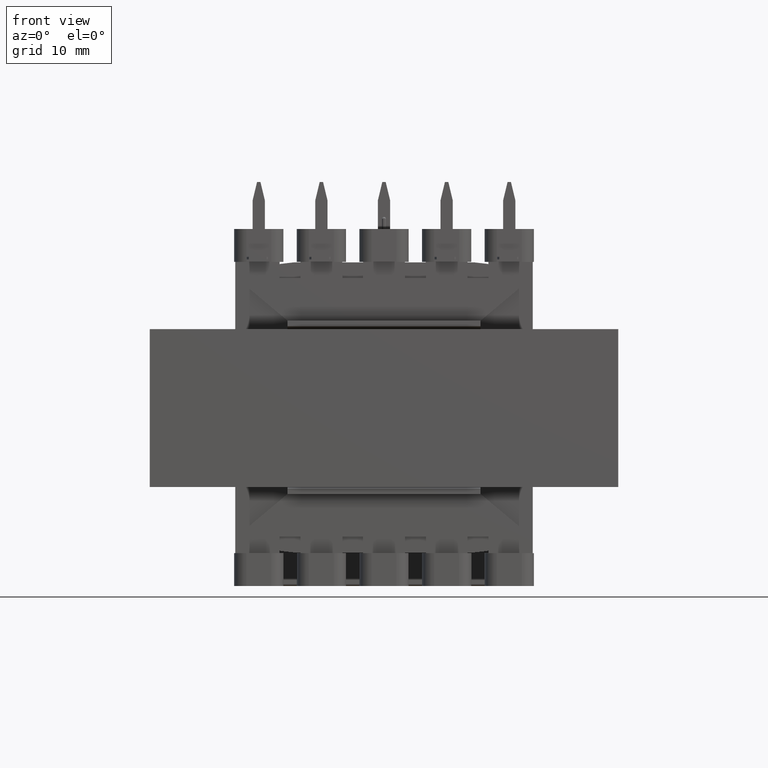
[diagram: clean part render]
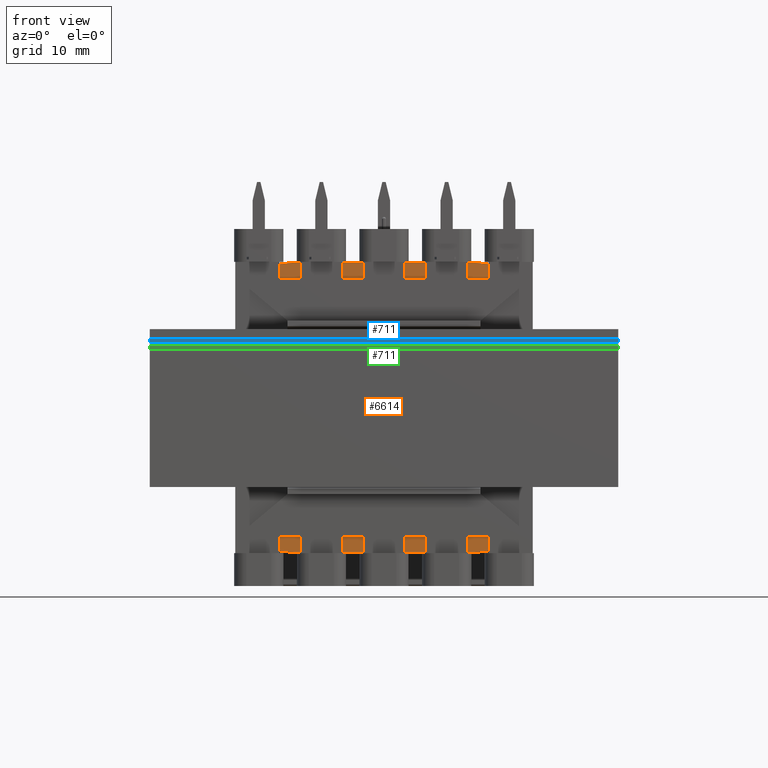
[diagram: same view with three faces highlighted in distinct colors, each labeled with its STEP entity id]
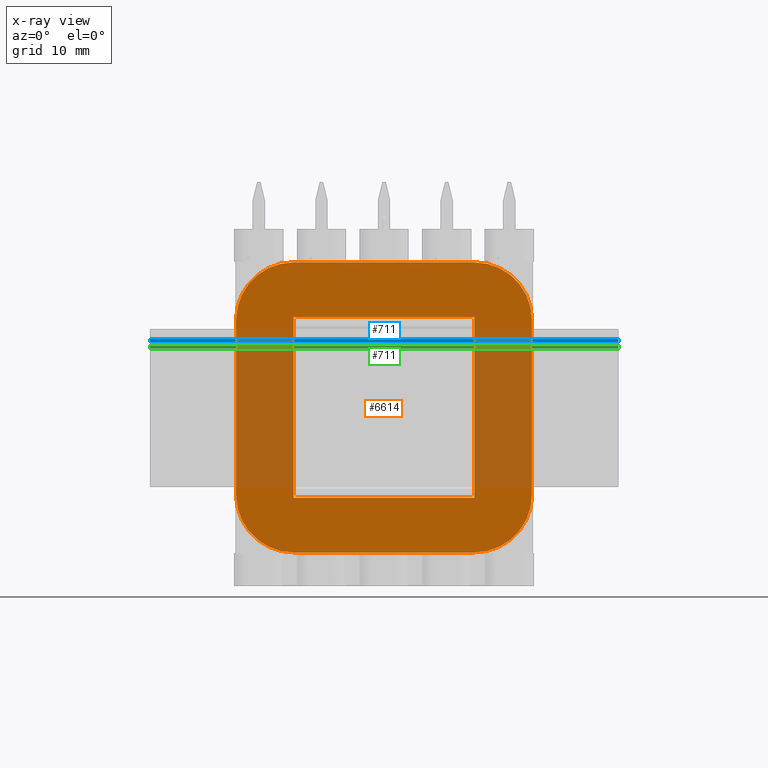
[diagram: x-ray of the same camera — body ghosted, the three highlighted faces saturated]
A machine part, front view with three faces highlighted in distinct colors.
The next image is the same camera in x-ray (body ghosted, the three faces saturated) — at least one of them is partly hidden behind the body in this view.
Their STEP definitions:

[orange] entity #6614 — the highlighted planar face has unit normal (0, -1, 0).
#155 = EDGE_CURVE ( 'NONE', #1482, #7897, #1036, .T. ) ;
#279 = CARTESIAN_POINT ( 'NONE',  ( 11.00000000000000000, 0.000000000000000000, 11.00000000000000178 ) ) ;
#639 = ORIENTED_EDGE ( 'NONE', *, *, #7436, .T. ) ;
#755 = CARTESIAN_POINT ( 'NONE',  ( -11.00000000000000355, 0.000000000000000000, -10.99999999999999289 ) ) ;
#777 = CARTESIAN_POINT ( 'NONE',  ( 11.00000000000001066, 0.000000000000000000, 10.64999999999999680 ) ) ;
#980 = EDGE_LOOP ( 'NONE', ( #6918, #8320, #12465, #13258 ) ) ;
#1036 = LINE ( 'NONE', #6662, #5570 ) ;
#1266 = DIRECTION ( 'NONE',  ( 0.000000000000000000, -0.000000000000000000, -1.000000000000000000 ) ) ;
#1314 = CARTESIAN_POINT ( 'NONE',  ( 18.00000000000001421, 0.000000000000000000, 10.64999999999999680 ) ) ;
#1331 = ORIENTED_EDGE ( 'NONE', *, *, #10420, .T. ) ;
#1482 = VERTEX_POINT ( 'NONE', #7201 ) ;
#1519 = VECTOR ( 'NONE', #3792, 1000.000000000000000 ) ;
#1927 = EDGE_CURVE ( 'NONE', #5792, #10040, #5947, .T. ) ;
#1970 = CARTESIAN_POINT ( 'NONE',  ( 10.99999999999999645, 0.000000000000000000, -10.99999999999999645 ) ) ;
#1995 = FACE_BOUND ( 'NONE', #980, .T. ) ;
#2022 = AXIS2_PLACEMENT_3D ( 'NONE', #3858, #5228, #7339 ) ;
#2140 = FACE_OUTER_BOUND ( 'NONE', #12360, .T. ) ;
#2165 = VERTEX_POINT ( 'NONE', #5315 ) ;
#2211 = AXIS2_PLACEMENT_3D ( 'NONE', #11060, #6460, #1266 ) ;
#2270 = CARTESIAN_POINT ( 'NONE',  ( 18.00000000000000711, 0.000000000000000000, -17.65000000000000213 ) ) ;
#3257 = VECTOR ( 'NONE', #12876, 1000.000000000000000 ) ;
#3654 = CARTESIAN_POINT ( 'NONE',  ( -11.00000000000000355, 0.000000000000000000, -10.99999999999999289 ) ) ;
#3658 = DIRECTION ( 'NONE',  ( -1.000000000000000000, 0.000000000000000000, 1.577021341797097560E-16 ) ) ;
#3726 = ORIENTED_EDGE ( 'NONE', *, *, #155, .F. ) ;
#3792 = DIRECTION ( 'NONE',  ( 0.000000000000000000, 0.000000000000000000, 1.000000000000000000 ) ) ;
#3858 = CARTESIAN_POINT ( 'NONE',  ( -10.99999999999998934, 0.000000000000000000, 10.64999999999999680 ) ) ;
#4144 = CARTESIAN_POINT ( 'NONE',  ( 11.00000000000000888, 0.000000000000000000, -10.65000000000000391 ) ) ;
#4225 = VECTOR ( 'NONE', #6101, 1000.000000000000000 ) ;
#5228 = DIRECTION ( 'NONE',  ( 0.000000000000000000, -1.000000000000000000, 0.000000000000000000 ) ) ;
#5315 = CARTESIAN_POINT ( 'NONE',  ( 11.00000000000001066, 0.000000000000000000, 17.64999999999999503 ) ) ;
#5349 = LINE ( 'NONE', #7377, #3257 ) ;
#5376 = CARTESIAN_POINT ( 'NONE',  ( 18.00000000000000711, 0.000000000000000000, -10.65000000000000568 ) ) ;
#5460 = DIRECTION ( 'NONE',  ( 0.000000000000000000, 0.000000000000000000, -1.000000000000000000 ) ) ;
#5570 = VECTOR ( 'NONE', #8780, 1000.000000000000000 ) ;
#5792 = VERTEX_POINT ( 'NONE', #279 ) ;
#5947 = LINE ( 'NONE', #1970, #4225 ) ;
#6009 = VERTEX_POINT ( 'NONE', #6125 ) ;
#6101 = DIRECTION ( 'NONE',  ( -1.577021341797097560E-16, -0.000000000000000000, -1.000000000000000000 ) ) ;
#6125 = CARTESIAN_POINT ( 'NONE',  ( -11.00000000000000355, 0.000000000000000000, 11.00000000000000711 ) ) ;
#6127 = DIRECTION ( 'NONE',  ( 1.000000000000000000, -0.000000000000000000, -2.365532012695646217E-16 ) ) ;
#6238 = VECTOR ( 'NONE', #7666, 1000.000000000000000 ) ;
#6344 = DIRECTION ( 'NONE',  ( 0.000000000000000000, -1.000000000000000000, 0.000000000000000000 ) ) ;
#6458 = CIRCLE ( 'NONE', #2022, 7.000000000000000000 ) ;
#6460 = DIRECTION ( 'NONE',  ( 0.000000000000000000, -1.000000000000000000, 0.000000000000000000 ) ) ;
#6598 = PLANE ( 'NONE',  #2211 ) ;
#6614 = ADVANCED_FACE ( 'NONE', ( #2140, #1995 ), #6598, .T. ) ;
#6662 = CARTESIAN_POINT ( 'NONE',  ( 18.00000000000000711, 0.000000000000000000, -17.65000000000000213 ) ) ;
#6731 = DIRECTION ( 'NONE',  ( 0.000000000000000000, -1.000000000000000000, 0.000000000000000000 ) ) ;
#6806 = CARTESIAN_POINT ( 'NONE',  ( -17.99999999999999289, 0.000000000000000000, -10.64999999999999858 ) ) ;
#6895 = CIRCLE ( 'NONE', #12279, 6.999999999999999112 ) ;
#6918 = ORIENTED_EDGE ( 'NONE', *, *, #8353, .T. ) ;
#6999 = VECTOR ( 'NONE', #10517, 1000.000000000000000 ) ;
#7176 = EDGE_CURVE ( 'NONE', #8376, #7897, #10164, .T. ) ;
#7201 = CARTESIAN_POINT ( 'NONE',  ( 11.00000000000000888, 0.000000000000000000, -17.65000000000000213 ) ) ;
#7257 = EDGE_CURVE ( 'NONE', #14077, #7910, #10443, .T. ) ;
#7339 = DIRECTION ( 'NONE',  ( 0.000000000000000000, 0.000000000000000000, -1.000000000000000000 ) ) ;
#7377 = CARTESIAN_POINT ( 'NONE',  ( 18.00000000000001421, 0.000000000000000000, 17.64999999999999503 ) ) ;
#7436 = EDGE_CURVE ( 'NONE', #14077, #2165, #8867, .T. ) ;
#7622 = VECTOR ( 'NONE', #6127, 1000.000000000000000 ) ;
#7666 = DIRECTION ( 'NONE',  ( 2.948538486079558773E-16, 0.000000000000000000, 1.000000000000000000 ) ) ;
#7739 = LINE ( 'NONE', #12271, #6238 ) ;
#7897 = VERTEX_POINT ( 'NONE', #12095 ) ;
#7910 = VERTEX_POINT ( 'NONE', #5376 ) ;
#7987 = EDGE_CURVE ( 'NONE', #9219, #2165, #5349, .T. ) ;
#8025 = CARTESIAN_POINT ( 'NONE',  ( 10.99999999999999645, 0.000000000000000000, -10.99999999999999645 ) ) ;
#8144 = CARTESIAN_POINT ( 'NONE',  ( -10.99999999999998934, 0.000000000000000000, 17.64999999999999503 ) ) ;
#8289 = AXIS2_PLACEMENT_3D ( 'NONE', #12700, #6731, #11692 ) ;
#8320 = ORIENTED_EDGE ( 'NONE', *, *, #11430, .T. ) ;
#8323 = CARTESIAN_POINT ( 'NONE',  ( 11.00000000000000000, 0.000000000000000000, 11.00000000000000178 ) ) ;
#8353 = EDGE_CURVE ( 'NONE', #10040, #13440, #10238, .T. ) ;
#8376 = VERTEX_POINT ( 'NONE', #6806 ) ;
#8483 = ORIENTED_EDGE ( 'NONE', *, *, #12659, .F. ) ;
#8501 = ORIENTED_EDGE ( 'NONE', *, *, #7176, .T. ) ;
#8601 = DIRECTION ( 'NONE',  ( 0.000000000000000000, 0.000000000000000000, -1.000000000000000000 ) ) ;
#8780 = DIRECTION ( 'NONE',  ( -1.000000000000000000, 0.000000000000000000, 9.637352644315594010E-17 ) ) ;
#8867 = CIRCLE ( 'NONE', #10743, 7.000000000000000000 ) ;
#9219 = VERTEX_POINT ( 'NONE', #8144 ) ;
#9365 = VERTEX_POINT ( 'NONE', #11725 ) ;
#9482 = ORIENTED_EDGE ( 'NONE', *, *, #7257, .F. ) ;
#9794 = ORIENTED_EDGE ( 'NONE', *, *, #7987, .F. ) ;
#10040 = VERTEX_POINT ( 'NONE', #8025 ) ;
#10164 = CIRCLE ( 'NONE', #8289, 6.999999999999999112 ) ;
#10238 = LINE ( 'NONE', #13599, #13057 ) ;
#10420 = EDGE_CURVE ( 'NONE', #1482, #7910, #6895, .T. ) ;
#10443 = LINE ( 'NONE', #2270, #6999 ) ;
#10517 = DIRECTION ( 'NONE',  ( -1.965692324053039264E-16, -0.000000000000000000, -1.000000000000000000 ) ) ;
#10743 = AXIS2_PLACEMENT_3D ( 'NONE', #777, #12247, #5460 ) ;
#11060 = CARTESIAN_POINT ( 'NONE',  ( 0.000000000000000000, 0.000000000000000000, 0.000000000000000000 ) ) ;
#11430 = EDGE_CURVE ( 'NONE', #13440, #6009, #13817, .T. ) ;
#11692 = DIRECTION ( 'NONE',  ( 0.000000000000000000, 0.000000000000000000, -1.000000000000000000 ) ) ;
#11725 = CARTESIAN_POINT ( 'NONE',  ( -17.99999999999998934, 0.000000000000000000, 10.65000000000000036 ) ) ;
#11753 = ORIENTED_EDGE ( 'NONE', *, *, #12950, .T. ) ;
#11828 = LINE ( 'NONE', #8323, #7622 ) ;
#12095 = CARTESIAN_POINT ( 'NONE',  ( -10.99999999999999289, 0.000000000000000000, -17.64999999999999858 ) ) ;
#12247 = DIRECTION ( 'NONE',  ( 0.000000000000000000, -1.000000000000000000, 0.000000000000000000 ) ) ;
#12271 = CARTESIAN_POINT ( 'NONE',  ( -17.99999999999999645, 0.000000000000000000, -17.64999999999999858 ) ) ;
#12279 = AXIS2_PLACEMENT_3D ( 'NONE', #4144, #6344, #8601 ) ;
#12360 = EDGE_LOOP ( 'NONE', ( #8483, #8501, #3726, #1331, #9482, #639, #9794, #11753 ) ) ;
#12465 = ORIENTED_EDGE ( 'NONE', *, *, #13025, .T. ) ;
#12659 = EDGE_CURVE ( 'NONE', #8376, #9365, #7739, .T. ) ;
#12700 = CARTESIAN_POINT ( 'NONE',  ( -10.99999999999999467, 0.000000000000000000, -10.65000000000000036 ) ) ;
#12876 = DIRECTION ( 'NONE',  ( 1.000000000000000000, -0.000000000000000000, -0.000000000000000000 ) ) ;
#12950 = EDGE_CURVE ( 'NONE', #9219, #9365, #6458, .T. ) ;
#13025 = EDGE_CURVE ( 'NONE', #6009, #5792, #11828, .T. ) ;
#13057 = VECTOR ( 'NONE', #3658, 1000.000000000000000 ) ;
#13258 = ORIENTED_EDGE ( 'NONE', *, *, #1927, .T. ) ;
#13440 = VERTEX_POINT ( 'NONE', #755 ) ;
#13599 = CARTESIAN_POINT ( 'NONE',  ( 10.99999999999999645, 0.000000000000000000, -10.99999999999999645 ) ) ;
#13817 = LINE ( 'NONE', #3654, #1519 ) ;
#14077 = VERTEX_POINT ( 'NONE', #1314 ) ;

[blue] entity #711 — the highlighted planar face has unit normal (-0, 1, 0).
#135 = LINE ( 'NONE', #11310, #10729 ) ;
#333 = DIRECTION ( 'NONE',  ( -1.000000000000000000, -1.065181081740144783E-16, 0.000000000000000000 ) ) ;
#414 = PLANE ( 'NONE',  #3000 ) ;
#711 = ADVANCED_FACE ( 'NONE', ( #12545 ), #414, .F. ) ;
#914 = CARTESIAN_POINT ( 'NONE',  ( -28.49999999999999645, -4.750000000000002665, 0.4000000000000000222 ) ) ;
#1260 = CARTESIAN_POINT ( 'NONE',  ( 28.50000000000000355, -4.749999999999996447, 0.4000000000000000222 ) ) ;
#1316 = EDGE_CURVE ( 'NONE', #6532, #9623, #135, .T. ) ;
#2309 = DIRECTION ( 'NONE',  ( -0.000000000000000000, -0.000000000000000000, -1.000000000000000000 ) ) ;
#3000 = AXIS2_PLACEMENT_3D ( 'NONE', #3925, #12462, #333 ) ;
#3925 = CARTESIAN_POINT ( 'NONE',  ( 28.50000000000000355, -4.749999999999996447, 0.4000000000000000222 ) ) ;
#4190 = VECTOR ( 'NONE', #2309, 1000.000000000000000 ) ;
#4525 = VERTEX_POINT ( 'NONE', #12695 ) ;
#6244 = LINE ( 'NONE', #10763, #8528 ) ;
#6365 = CARTESIAN_POINT ( 'NONE',  ( 28.50000000000000355, -4.749999999999996447, 0.000000000000000000 ) ) ;
#6532 = VERTEX_POINT ( 'NONE', #914 ) ;
#6827 = EDGE_CURVE ( 'NONE', #4525, #7074, #9648, .T. ) ;
#7074 = VERTEX_POINT ( 'NONE', #6365 ) ;
#7537 = EDGE_CURVE ( 'NONE', #9623, #7074, #8886, .T. ) ;
#8528 = VECTOR ( 'NONE', #10628, 1000.000000000000000 ) ;
#8886 = LINE ( 'NONE', #12330, #4190 ) ;
#9375 = EDGE_CURVE ( 'NONE', #6532, #4525, #6244, .T. ) ;
#9623 = VERTEX_POINT ( 'NONE', #1260 ) ;
#9648 = LINE ( 'NONE', #13843, #13661 ) ;
#9763 = ORIENTED_EDGE ( 'NONE', *, *, #6827, .T. ) ;
#10628 = DIRECTION ( 'NONE',  ( -0.000000000000000000, -0.000000000000000000, -1.000000000000000000 ) ) ;
#10729 = VECTOR ( 'NONE', #11392, 1000.000000000000000 ) ;
#10763 = CARTESIAN_POINT ( 'NONE',  ( -28.49999999999999645, -4.750000000000002665, 0.4000000000000000222 ) ) ;
#10803 = ORIENTED_EDGE ( 'NONE', *, *, #1316, .F. ) ;
#10816 = EDGE_LOOP ( 'NONE', ( #9763, #13995, #10803, #12088 ) ) ;
#11310 = CARTESIAN_POINT ( 'NONE',  ( 28.50000000000000355, -4.749999999999996447, 0.4000000000000000222 ) ) ;
#11392 = DIRECTION ( 'NONE',  ( 1.000000000000000000, 1.065181081740144783E-16, -0.000000000000000000 ) ) ;
#12088 = ORIENTED_EDGE ( 'NONE', *, *, #9375, .T. ) ;
#12330 = CARTESIAN_POINT ( 'NONE',  ( 28.50000000000000355, -4.749999999999996447, 0.4000000000000000222 ) ) ;
#12462 = DIRECTION ( 'NONE',  ( -1.065181081740144783E-16, 1.000000000000000000, 0.000000000000000000 ) ) ;
#12545 = FACE_OUTER_BOUND ( 'NONE', #10816, .T. ) ;
#12695 = CARTESIAN_POINT ( 'NONE',  ( -28.49999999999999645, -4.750000000000002665, 0.000000000000000000 ) ) ;
#13661 = VECTOR ( 'NONE', #13983, 1000.000000000000000 ) ;
#13843 = CARTESIAN_POINT ( 'NONE',  ( 28.50000000000000355, -4.749999999999996447, 0.000000000000000000 ) ) ;
#13983 = DIRECTION ( 'NONE',  ( 1.000000000000000000, 1.065181081740144783E-16, -0.000000000000000000 ) ) ;
#13995 = ORIENTED_EDGE ( 'NONE', *, *, #7537, .F. ) ;

[green] entity #711 — the highlighted planar face has unit normal (-0, 1, 0).
#135 = LINE ( 'NONE', #11310, #10729 ) ;
#333 = DIRECTION ( 'NONE',  ( -1.000000000000000000, -1.065181081740144783E-16, 0.000000000000000000 ) ) ;
#414 = PLANE ( 'NONE',  #3000 ) ;
#711 = ADVANCED_FACE ( 'NONE', ( #12545 ), #414, .F. ) ;
#914 = CARTESIAN_POINT ( 'NONE',  ( -28.49999999999999645, -4.750000000000002665, 0.4000000000000000222 ) ) ;
#1260 = CARTESIAN_POINT ( 'NONE',  ( 28.50000000000000355, -4.749999999999996447, 0.4000000000000000222 ) ) ;
#1316 = EDGE_CURVE ( 'NONE', #6532, #9623, #135, .T. ) ;
#2309 = DIRECTION ( 'NONE',  ( -0.000000000000000000, -0.000000000000000000, -1.000000000000000000 ) ) ;
#3000 = AXIS2_PLACEMENT_3D ( 'NONE', #3925, #12462, #333 ) ;
#3925 = CARTESIAN_POINT ( 'NONE',  ( 28.50000000000000355, -4.749999999999996447, 0.4000000000000000222 ) ) ;
#4190 = VECTOR ( 'NONE', #2309, 1000.000000000000000 ) ;
#4525 = VERTEX_POINT ( 'NONE', #12695 ) ;
#6244 = LINE ( 'NONE', #10763, #8528 ) ;
#6365 = CARTESIAN_POINT ( 'NONE',  ( 28.50000000000000355, -4.749999999999996447, 0.000000000000000000 ) ) ;
#6532 = VERTEX_POINT ( 'NONE', #914 ) ;
#6827 = EDGE_CURVE ( 'NONE', #4525, #7074, #9648, .T. ) ;
#7074 = VERTEX_POINT ( 'NONE', #6365 ) ;
#7537 = EDGE_CURVE ( 'NONE', #9623, #7074, #8886, .T. ) ;
#8528 = VECTOR ( 'NONE', #10628, 1000.000000000000000 ) ;
#8886 = LINE ( 'NONE', #12330, #4190 ) ;
#9375 = EDGE_CURVE ( 'NONE', #6532, #4525, #6244, .T. ) ;
#9623 = VERTEX_POINT ( 'NONE', #1260 ) ;
#9648 = LINE ( 'NONE', #13843, #13661 ) ;
#9763 = ORIENTED_EDGE ( 'NONE', *, *, #6827, .T. ) ;
#10628 = DIRECTION ( 'NONE',  ( -0.000000000000000000, -0.000000000000000000, -1.000000000000000000 ) ) ;
#10729 = VECTOR ( 'NONE', #11392, 1000.000000000000000 ) ;
#10763 = CARTESIAN_POINT ( 'NONE',  ( -28.49999999999999645, -4.750000000000002665, 0.4000000000000000222 ) ) ;
#10803 = ORIENTED_EDGE ( 'NONE', *, *, #1316, .F. ) ;
#10816 = EDGE_LOOP ( 'NONE', ( #9763, #13995, #10803, #12088 ) ) ;
#11310 = CARTESIAN_POINT ( 'NONE',  ( 28.50000000000000355, -4.749999999999996447, 0.4000000000000000222 ) ) ;
#11392 = DIRECTION ( 'NONE',  ( 1.000000000000000000, 1.065181081740144783E-16, -0.000000000000000000 ) ) ;
#12088 = ORIENTED_EDGE ( 'NONE', *, *, #9375, .T. ) ;
#12330 = CARTESIAN_POINT ( 'NONE',  ( 28.50000000000000355, -4.749999999999996447, 0.4000000000000000222 ) ) ;
#12462 = DIRECTION ( 'NONE',  ( -1.065181081740144783E-16, 1.000000000000000000, 0.000000000000000000 ) ) ;
#12545 = FACE_OUTER_BOUND ( 'NONE', #10816, .T. ) ;
#12695 = CARTESIAN_POINT ( 'NONE',  ( -28.49999999999999645, -4.750000000000002665, 0.000000000000000000 ) ) ;
#13661 = VECTOR ( 'NONE', #13983, 1000.000000000000000 ) ;
#13843 = CARTESIAN_POINT ( 'NONE',  ( 28.50000000000000355, -4.749999999999996447, 0.000000000000000000 ) ) ;
#13983 = DIRECTION ( 'NONE',  ( 1.000000000000000000, 1.065181081740144783E-16, -0.000000000000000000 ) ) ;
#13995 = ORIENTED_EDGE ( 'NONE', *, *, #7537, .F. ) ;